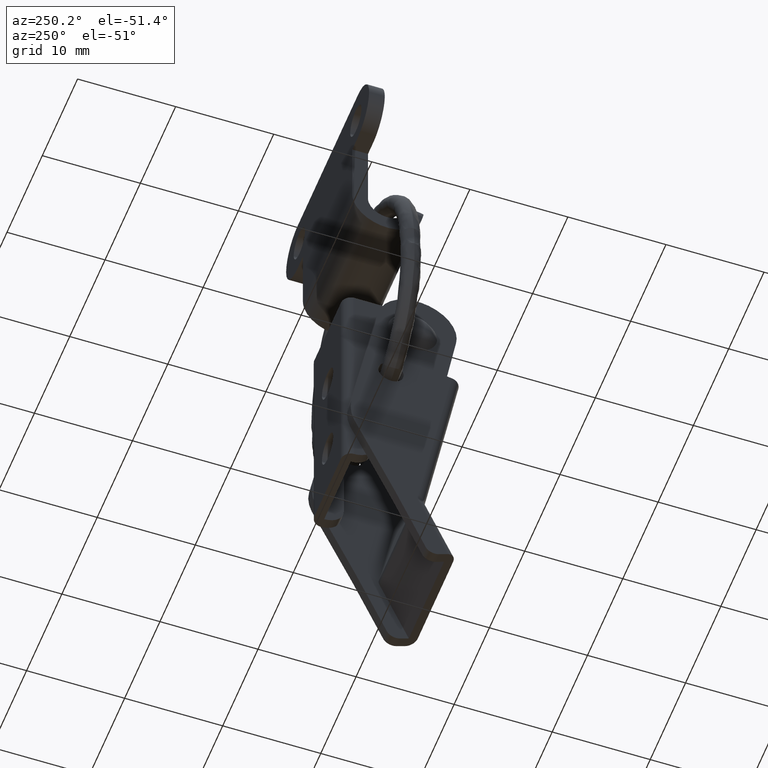
[diagram: clean part render]
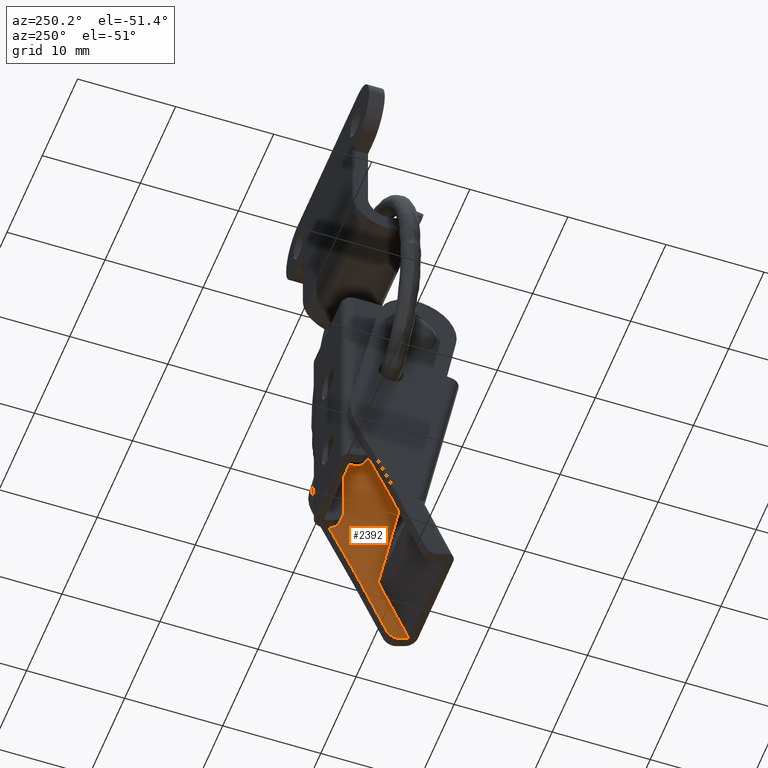
[diagram: same view with one face highlighted and labeled with its STEP entity id]
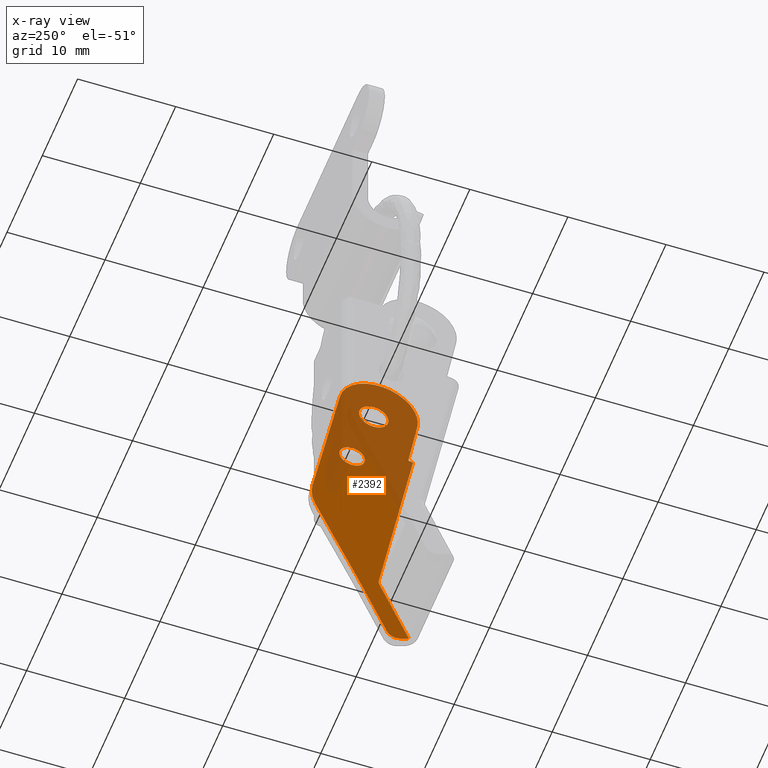
[diagram: x-ray of the same camera — body ghosted, the highlighted face saturated]
A machine part, auxiliary view. The second image highlights one B-rep face of the part: STEP entity #2392.
The next image is the same camera in x-ray: the body ghosted, the highlighted face saturated — about 47% of this face is hidden behind the body in this view.
In plain terms, the highlighted face is a freeform B-spline surface patch.
Its self-contained STEP definition (entity closure, byte-faithful):
#443=CARTESIAN_POINT('',(5.0,1.488399320736260,-0.186192003137729));
#444=VERTEX_POINT('',#443);
#445=CARTESIAN_POINT('',(5.0,0.0,-1.500000000000200));
#446=VERTEX_POINT('',#445);
#447=CARTESIAN_POINT('',(5.000000000000001,1.488399320736260,-0.186192003137729));
#448=CARTESIAN_POINT('',(5.000000000000001,1.324047900193317,-1.500000000000200));
#449=CARTESIAN_POINT('',(5.0,0.0,-1.500000000000200));
#457=(BOUNDED_CURVE()B_SPLINE_CURVE(2,(#447,#448,#449),.UNSPECIFIED.,.F.,.U.)B_SPLINE_CURVE_WITH_KNOTS((3,3),(0.271473928974771,0.500000000000000),.UNSPECIFIED.)CURVE()GEOMETRIC_REPRESENTATION_ITEM()RATIONAL_B_SPLINE_CURVE((0.954005430266820,0.732265053898516,1.0))REPRESENTATION_ITEM(''));
#458=EDGE_CURVE('',#444,#446,#457,.T.);
#460=CARTESIAN_POINT('',(5.0,-1.499942884593444,0.013089803592733));
#461=VERTEX_POINT('',#460);
#462=CARTESIAN_POINT('',(5.0,0.0,-1.500000000000200));
#463=CARTESIAN_POINT('',(5.000000000000001,-1.500000000000201,-1.500000000000201));
#464=CARTESIAN_POINT('',(5.0,-1.500000000000200,0.0));
#465=CARTESIAN_POINT('',(5.000000000000001,-1.500000000000200,0.006545026576240));
#466=CARTESIAN_POINT('',(5.0,-1.499942884593444,0.013089803592733));
#474=(BOUNDED_CURVE()B_SPLINE_CURVE(2,(#462,#463,#464,#465,#466),.UNSPECIFIED.,.F.,.U.)B_SPLINE_CURVE_WITH_KNOTS((3,2,3),(0.500000000000000,0.750000000000000,0.751539894416055),.UNSPECIFIED.)CURVE()GEOMETRIC_REPRESENTATION_ITEM()RATIONAL_B_SPLINE_CURVE((1.0,0.707106781186548,1.0,0.998195901471395,0.996414027912792))REPRESENTATION_ITEM(''));
#475=EDGE_CURVE('',#446,#461,#474,.T.);
#546=CARTESIAN_POINT('',(5.0,0.0,1.500000000000200));
#547=VERTEX_POINT('',#546);
#548=CARTESIAN_POINT('',(5.0,0.0,1.500000000000200));
#549=CARTESIAN_POINT('',(5.000000000000001,1.500000000000201,1.500000000000201));
#550=CARTESIAN_POINT('',(5.0,1.500000000000200,0.0));
#551=CARTESIAN_POINT('',(5.000000000000001,1.500000000000200,-0.093457391318425));
#552=CARTESIAN_POINT('',(5.0,1.488399320736260,-0.186192003137729));
#560=(BOUNDED_CURVE()B_SPLINE_CURVE(2,(#548,#549,#550,#551,#552),.UNSPECIFIED.,.F.,.U.)B_SPLINE_CURVE_WITH_KNOTS((3,2,3),(0.0,0.250000000000000,0.271473928974771),.UNSPECIFIED.)CURVE()GEOMETRIC_REPRESENTATION_ITEM()RATIONAL_B_SPLINE_CURVE((1.0,0.707106781186548,1.0,0.974841727288031,0.954005430266820))REPRESENTATION_ITEM(''));
#561=EDGE_CURVE('',#547,#444,#560,.T.);
#595=CARTESIAN_POINT('',(5.0,-1.499942884593445,0.013089803592733));
#596=CARTESIAN_POINT('',(5.000000000000001,-1.486966815208270,1.500000000000200));
#597=CARTESIAN_POINT('',(5.0,0.0,1.500000000000200));
#605=(BOUNDED_CURVE()B_SPLINE_CURVE(2,(#595,#596,#597),.UNSPECIFIED.,.F.,.U.)B_SPLINE_CURVE_WITH_KNOTS((3,3),(0.751539894416056,1.0),.UNSPECIFIED.)CURVE()GEOMETRIC_REPRESENTATION_ITEM()RATIONAL_B_SPLINE_CURVE((0.996414027912790,0.708910879715154,1.0))REPRESENTATION_ITEM(''));
#606=EDGE_CURVE('',#461,#547,#605,.T.);
#815=CARTESIAN_POINT('',(4.999999999999999,3.489943077947501,-7.161366402909110));
#816=VERTEX_POINT('',#815);
#817=CARTESIAN_POINT('',(5.0,2.199997000000000,-8.299999999999811));
#818=VERTEX_POINT('',#817);
#819=CARTESIAN_POINT('',(4.999999999999999,3.489943077947502,-7.161366402909110));
#820=CARTESIAN_POINT('',(4.999999999999998,3.347505179826788,-8.299999999999811));
#821=CARTESIAN_POINT('',(5.0,2.199997000000000,-8.299999999999811));
#829=(BOUNDED_CURVE()B_SPLINE_CURVE(2,(#819,#820,#821),.UNSPECIFIED.,.F.,.U.)B_SPLINE_CURVE_WITH_KNOTS((3,3),(0.271473929024443,0.500000000000000),.UNSPECIFIED.)CURVE()GEOMETRIC_REPRESENTATION_ITEM()RATIONAL_B_SPLINE_CURVE((0.954005430170427,0.732265053956710,1.0))REPRESENTATION_ITEM(''));
#830=EDGE_CURVE('',#816,#818,#829,.T.);
#832=CARTESIAN_POINT('',(5.0,0.900046500019807,-6.988655503480506));
#833=VERTEX_POINT('',#832);
#834=CARTESIAN_POINT('',(5.0,2.199997000000000,-8.299999999999811));
#835=CARTESIAN_POINT('',(4.999999999999999,0.899996999999988,-8.299999999999811));
#836=CARTESIAN_POINT('',(5.0,0.899996999999988,-6.999999999999800));
#837=CARTESIAN_POINT('',(5.0,0.899996999999988,-6.994327643561463));
#838=CARTESIAN_POINT('',(5.0,0.900046500019807,-6.988655503480507));
#846=(BOUNDED_CURVE()B_SPLINE_CURVE(2,(#834,#835,#836,#837,#838),.UNSPECIFIED.,.F.,.U.)B_SPLINE_CURVE_WITH_KNOTS((3,2,3),(0.500000000000000,0.750000000000000,0.751539894435637),.UNSPECIFIED.)CURVE()GEOMETRIC_REPRESENTATION_ITEM()RATIONAL_B_SPLINE_CURVE((1.0,0.707106781186547,1.0,0.998195901448453,0.996414027867473))REPRESENTATION_ITEM(''));
#847=EDGE_CURVE('',#818,#833,#846,.T.);
#918=CARTESIAN_POINT('',(5.0,2.199997000000000,-5.699999999999788));
#919=VERTEX_POINT('',#918);
#920=CARTESIAN_POINT('',(5.0,2.199997000000000,-5.699999999999788));
#921=CARTESIAN_POINT('',(4.999999999999999,3.499997000000012,-5.699999999999788));
#922=CARTESIAN_POINT('',(5.0,3.499997000000012,-6.999999999999800));
#923=CARTESIAN_POINT('',(5.0,3.499997000000011,-7.080996406001280));
#924=CARTESIAN_POINT('',(4.999999999999999,3.489943077947502,-7.161366402909110));
#932=(BOUNDED_CURVE()B_SPLINE_CURVE(2,(#920,#921,#922,#923,#924),.UNSPECIFIED.,.F.,.U.)B_SPLINE_CURVE_WITH_KNOTS((3,2,3),(0.0,0.250000000000000,0.271473929024443),.UNSPECIFIED.)CURVE()GEOMETRIC_REPRESENTATION_ITEM()RATIONAL_B_SPLINE_CURVE((1.0,0.707106781186547,1.0,0.974841727229837,0.954005430170427))REPRESENTATION_ITEM(''));
#933=EDGE_CURVE('',#919,#816,#932,.T.);
#967=CARTESIAN_POINT('',(5.0,0.900046500019807,-6.988655503480506));
#968=CARTESIAN_POINT('',(5.000000000000001,0.911292426962934,-5.699999999999788));
#969=CARTESIAN_POINT('',(5.0,2.199997000000000,-5.699999999999788));
#977=(BOUNDED_CURVE()B_SPLINE_CURVE(2,(#967,#968,#969),.UNSPECIFIED.,.F.,.U.)B_SPLINE_CURVE_WITH_KNOTS((3,3),(0.751539894435638,1.0),.UNSPECIFIED.)CURVE()GEOMETRIC_REPRESENTATION_ITEM()RATIONAL_B_SPLINE_CURVE((0.996414027867471,0.708910879738096,1.0))REPRESENTATION_ITEM(''));
#978=EDGE_CURVE('',#833,#919,#977,.T.);
#1183=CARTESIAN_POINT('',(5.0,-0.580854969981944,-25.525229298579049));
#1184=VERTEX_POINT('',#1183);
#1185=CARTESIAN_POINT('',(5.0,-0.515469346430643,-24.956097579828551));
#1186=VERTEX_POINT('',#1185);
#1187=CARTESIAN_POINT('',(5.0,-0.580854969981900,-25.525229298579070));
#1188=CARTESIAN_POINT('',(5.0,-0.463087028004084,-25.250437433964077));
#1189=CARTESIAN_POINT('',(5.0,-0.515469346430664,-24.956097579828558));
#1197=(BOUNDED_CURVE()B_SPLINE_CURVE(2,(#1187,#1188,#1189),.UNSPECIFIED.,.F.,.U.)CURVE()GEOMETRIC_REPRESENTATION_ITEM()QUASI_UNIFORM_CURVE()RATIONAL_B_SPLINE_CURVE((1.0,0.958098873674437,1.0))REPRESENTATION_ITEM(''));
#1198=EDGE_CURVE('',#1184,#1186,#1197,.T.);
#1630=CARTESIAN_POINT('',(5.0,-2.661710055875630,-32.919145261762303));
#1631=VERTEX_POINT('',#1630);
#1637=CARTESIAN_POINT('',(5.0,-1.348647023567352,-32.393918721655503));
#1638=VERTEX_POINT('',#1637);
#1639=CARTESIAN_POINT('',(5.0,-1.348647023567340,-32.393918721655510));
#1640=CARTESIAN_POINT('',(5.000000000000001,-1.742565605123868,-33.313062669225715));
#1641=CARTESIAN_POINT('',(5.0,-2.661710055875630,-32.919145261762303));
#1649=(BOUNDED_CURVE()B_SPLINE_CURVE(2,(#1639,#1640,#1641),.UNSPECIFIED.,.F.,.U.)CURVE()GEOMETRIC_REPRESENTATION_ITEM()QUASI_UNIFORM_CURVE()RATIONAL_B_SPLINE_CURVE((1.0,0.707107232807161,1.0))REPRESENTATION_ITEM(''));
#1650=EDGE_CURVE('',#1638,#1631,#1649,.T.);
#1734=CARTESIAN_POINT('',(5.0,-3.580854375153010,-32.525227910644801));
#1735=VERTEX_POINT('',#1734);
#1736=CARTESIAN_POINT('',(5.0,-0.580854969981944,-25.525229298579049));
#1737=CARTESIAN_POINT('',(5.0,-3.580854375153010,-32.525227910644801));
#1738=QUASI_UNIFORM_CURVE('',1,(#1736,#1737),.UNSPECIFIED.,.F.,.U.);
#1739=EDGE_CURVE('',#1184,#1735,#1738,.T.);
#1754=CARTESIAN_POINT('',(5.0,-4.013499732734795,-5.300423974807511));
#1755=VERTEX_POINT('',#1754);
#1756=CARTESIAN_POINT('',(5.0,-4.013499732734795,-5.300423974807511));
#1757=CARTESIAN_POINT('',(5.0,-0.515469346430643,-24.956097579828551));
#1758=QUASI_UNIFORM_CURVE('',1,(#1756,#1757),.UNSPECIFIED.,.F.,.U.);
#1759=EDGE_CURVE('',#1755,#1186,#1758,.T.);
#1803=CARTESIAN_POINT('',(5.0,-3.520355000000000,-5.218368999999799));
#1804=VERTEX_POINT('',#1803);
#1810=CARTESIAN_POINT('',(5.0,-3.520355000000000,-5.218368999999799));
#1811=CARTESIAN_POINT('',(5.0,-4.013499732734795,-5.300423974807511));
#1812=QUASI_UNIFORM_CURVE('',1,(#1810,#1811),.UNSPECIFIED.,.F.,.U.);
#1813=EDGE_CURVE('',#1804,#1755,#1812,.T.);
#1838=CARTESIAN_POINT('',(5.0,-4.445755123097601,0.343481524594276));
#1839=VERTEX_POINT('',#1838);
#1845=CARTESIAN_POINT('',(5.0,-4.445755123097601,0.343481524594276));
#1846=CARTESIAN_POINT('',(5.0,-3.520355000000000,-5.218368999999799));
#1847=QUASI_UNIFORM_CURVE('',1,(#1845,#1846),.UNSPECIFIED.,.F.,.U.);
#1848=EDGE_CURVE('',#1839,#1804,#1847,.T.);
#1879=CARTESIAN_POINT('',(5.0,3.431516873709780,1.737004119211880));
#1880=VERTEX_POINT('',#1879);
#1886=CARTESIAN_POINT('',(5.0,3.431516873709780,1.737004119211878));
#1887=CARTESIAN_POINT('',(5.000000000000001,2.702004589016454,5.628556122906791));
#1888=CARTESIAN_POINT('',(5.0,-1.196797666014926,4.938841582576805));
#1889=CARTESIAN_POINT('',(5.000000000000001,-5.095599921046305,4.249127042246817));
#1890=CARTESIAN_POINT('',(5.0,-4.445755123097599,0.343481524594279));
#1898=(BOUNDED_CURVE()B_SPLINE_CURVE(2,(#1886,#1887,#1888,#1889,#1890),.UNSPECIFIED.,.F.,.U.)B_SPLINE_CURVE_WITH_KNOTS((3,2,3),(0.0,0.500000000000000,1.0),.UNSPECIFIED.)CURVE()GEOMETRIC_REPRESENTATION_ITEM()RATIONAL_B_SPLINE_CURVE((1.0,0.710709827605975,1.0,0.710709827605975,1.0))REPRESENTATION_ITEM(''));
#1899=EDGE_CURVE('',#1880,#1839,#1898,.T.);
#1927=CARTESIAN_POINT('',(5.0,6.231657316129950,-13.080092096784400));
#1928=VERTEX_POINT('',#1927);
#1934=CARTESIAN_POINT('',(5.0,6.231657316129950,-13.080092096784400));
#1935=CARTESIAN_POINT('',(5.0,3.431516873709780,1.737004119211880));
#1936=QUASI_UNIFORM_CURVE('',1,(#1934,#1935),.UNSPECIFIED.,.F.,.U.);
#1937=EDGE_CURVE('',#1928,#1880,#1936,.T.);
#1964=CARTESIAN_POINT('',(5.0,5.969497999999900,-15.844146999999801));
#1965=VERTEX_POINT('',#1964);
#1971=CARTESIAN_POINT('',(5.0,5.969497999999900,-15.844146999999801));
#1972=CARTESIAN_POINT('',(5.0,6.499995210449512,-14.500003388829008));
#1973=CARTESIAN_POINT('',(5.0,6.231657316129950,-13.080092096784400));
#1981=(BOUNDED_CURVE()B_SPLINE_CURVE(2,(#1971,#1972,#1973),.UNSPECIFIED.,.F.,.U.)CURVE()GEOMETRIC_REPRESENTATION_ITEM()QUASI_UNIFORM_CURVE()RATIONAL_B_SPLINE_CURVE((1.0,0.960683511439219,1.0))REPRESENTATION_ITEM(''));
#1982=EDGE_CURVE('',#1965,#1928,#1981,.T.);
#2008=CARTESIAN_POINT('',(5.0,1.763901000000000,-25.131301999999799));
#2009=VERTEX_POINT('',#2008);
#2015=CARTESIAN_POINT('',(5.0,1.763901000000000,-25.131301999999799));
#2016=CARTESIAN_POINT('',(5.0,5.969497999999900,-15.844146999999801));
#2017=QUASI_UNIFORM_CURVE('',1,(#2015,#2016),.UNSPECIFIED.,.F.,.U.);
#2018=EDGE_CURVE('',#2009,#1965,#2017,.T.);
#2040=CARTESIAN_POINT('',(5.0,-1.348647023567352,-32.393918721655503));
#2041=CARTESIAN_POINT('',(5.0,1.763901000000000,-25.131301999999799));
#2042=QUASI_UNIFORM_CURVE('',1,(#2040,#2041),.UNSPECIFIED.,.F.,.U.);
#2043=EDGE_CURVE('',#1638,#2009,#2042,.T.);
#2072=CARTESIAN_POINT('',(5.0,-3.580854375153010,-32.525227910644801));
#2073=CARTESIAN_POINT('',(5.0,-2.661710055875630,-32.919145261762303));
#2074=QUASI_UNIFORM_CURVE('',1,(#2072,#2073),.UNSPECIFIED.,.F.,.U.);
#2075=EDGE_CURVE('',#1735,#1631,#2074,.T.);
#2361=CARTESIAN_POINT('',(5.0,-5.036471434772264,6.895811752013696));
#2362=CARTESIAN_POINT('',(5.0,6.858822530487140,6.895811752013696));
#2363=CARTESIAN_POINT('',(5.0,-5.036471434772264,-34.897888179453297));
#2364=CARTESIAN_POINT('',(5.0,6.858822530487140,-34.897888179453297));
#2365=B_SPLINE_SURFACE_WITH_KNOTS('',1,1,((#2361,#2363),(#2362,#2364)),.UNSPECIFIED.,.F.,.F.,.U.,(2,2),(2,2),(0.0,11.895293965259411),(0.0,41.793699931467003),.UNSPECIFIED.);
#2366=ORIENTED_EDGE('',*,*,#2043,.F.);
#2367=ORIENTED_EDGE('',*,*,#1650,.T.);
#2368=ORIENTED_EDGE('',*,*,#2075,.F.);
#2369=ORIENTED_EDGE('',*,*,#1739,.F.);
#2370=ORIENTED_EDGE('',*,*,#1198,.T.);
#2371=ORIENTED_EDGE('',*,*,#1759,.F.);
#2372=ORIENTED_EDGE('',*,*,#1813,.F.);
#2373=ORIENTED_EDGE('',*,*,#1848,.F.);
#2374=ORIENTED_EDGE('',*,*,#1899,.F.);
#2375=ORIENTED_EDGE('',*,*,#1937,.F.);
#2376=ORIENTED_EDGE('',*,*,#1982,.F.);
#2377=ORIENTED_EDGE('',*,*,#2018,.F.);
#2378=EDGE_LOOP('',(#2366,#2367,#2368,#2369,#2370,#2371,#2372,#2373,#2374,#2375,#2376,#2377));
#2379=FACE_OUTER_BOUND('',#2378,.T.);
#2380=ORIENTED_EDGE('',*,*,#847,.F.);
#2381=ORIENTED_EDGE('',*,*,#830,.F.);
#2382=ORIENTED_EDGE('',*,*,#933,.F.);
#2383=ORIENTED_EDGE('',*,*,#978,.F.);
#2384=EDGE_LOOP('',(#2380,#2381,#2382,#2383));
#2385=FACE_BOUND('',#2384,.T.);
#2386=ORIENTED_EDGE('',*,*,#475,.F.);
#2387=ORIENTED_EDGE('',*,*,#458,.F.);
#2388=ORIENTED_EDGE('',*,*,#561,.F.);
#2389=ORIENTED_EDGE('',*,*,#606,.F.);
#2390=EDGE_LOOP('',(#2386,#2387,#2388,#2389));
#2391=FACE_BOUND('',#2390,.T.);
#2392=ADVANCED_FACE('',(#2379,#2385,#2391),#2365,.T.);